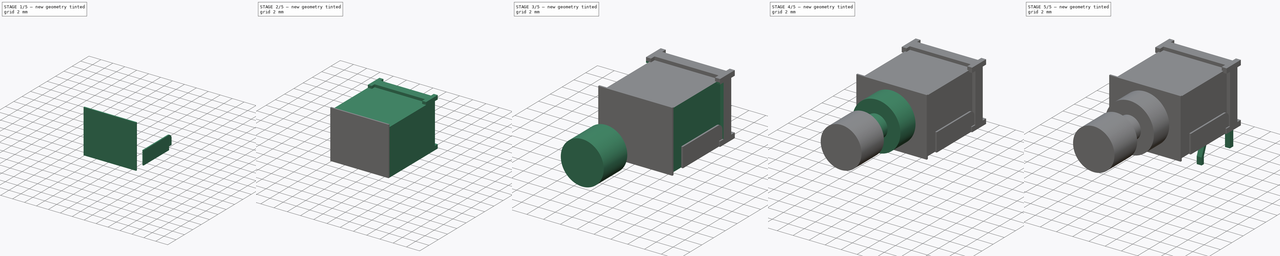
[diagram: build sequence overview — one tinted view per stage of 5, left to right]
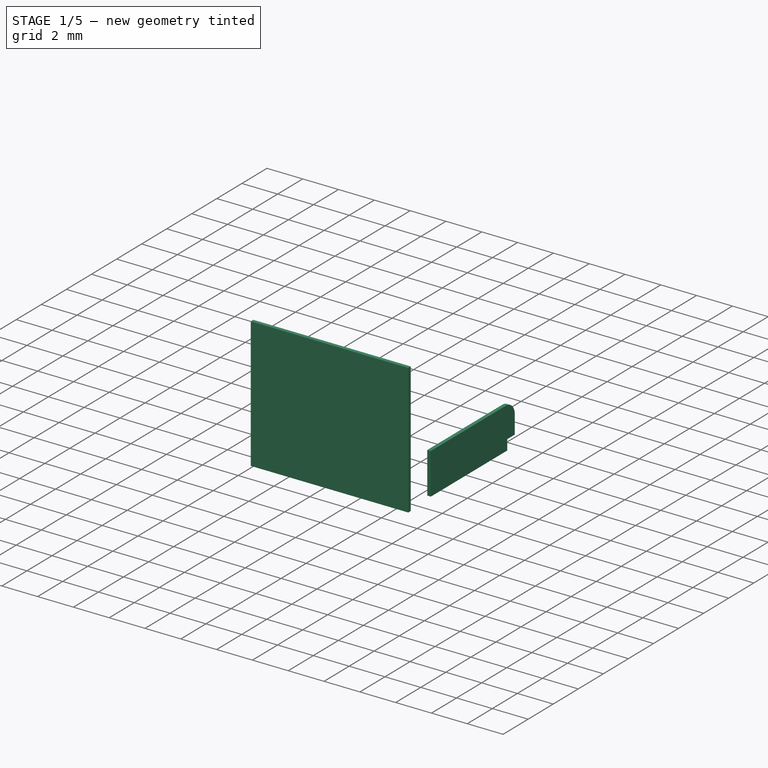
[diagram: stage 1 of 5 — iso view after this stage's code; geometry added in this stage tinted green]
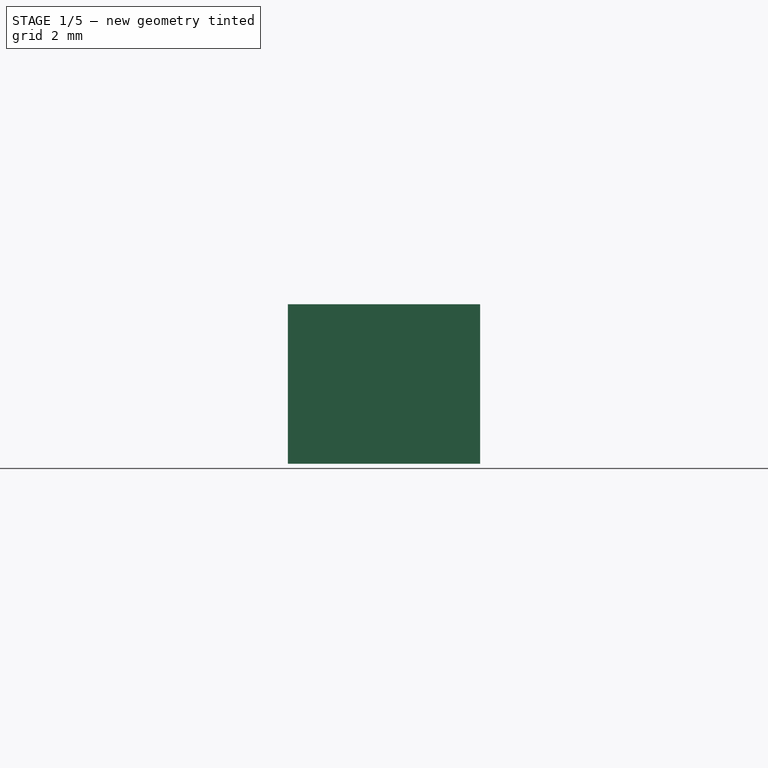
[diagram: stage 1 of 5 — front view after this stage's code; geometry added in this stage tinted green]
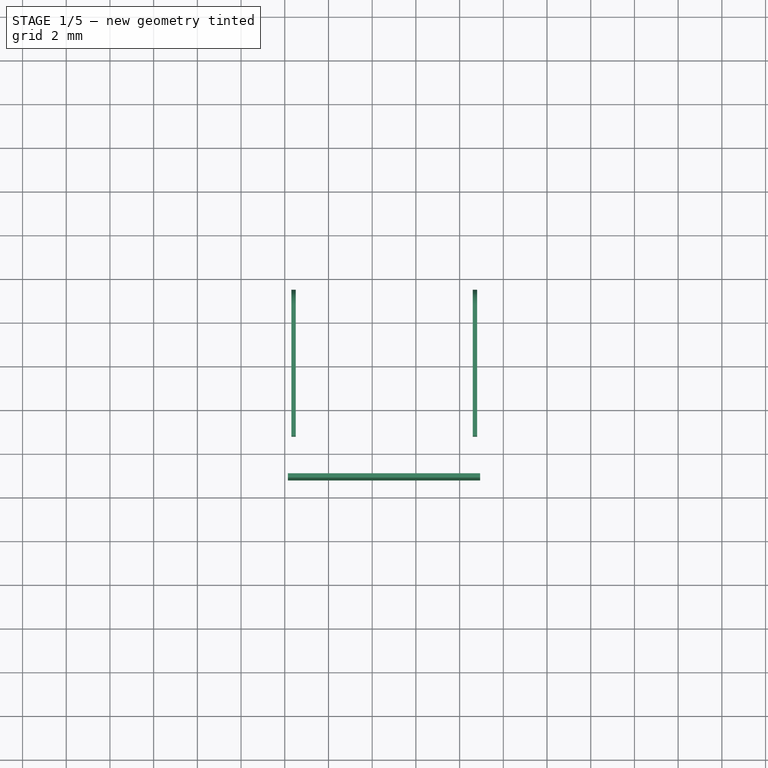
[diagram: stage 1 of 5 — top view after this stage's code; geometry added in this stage tinted green]
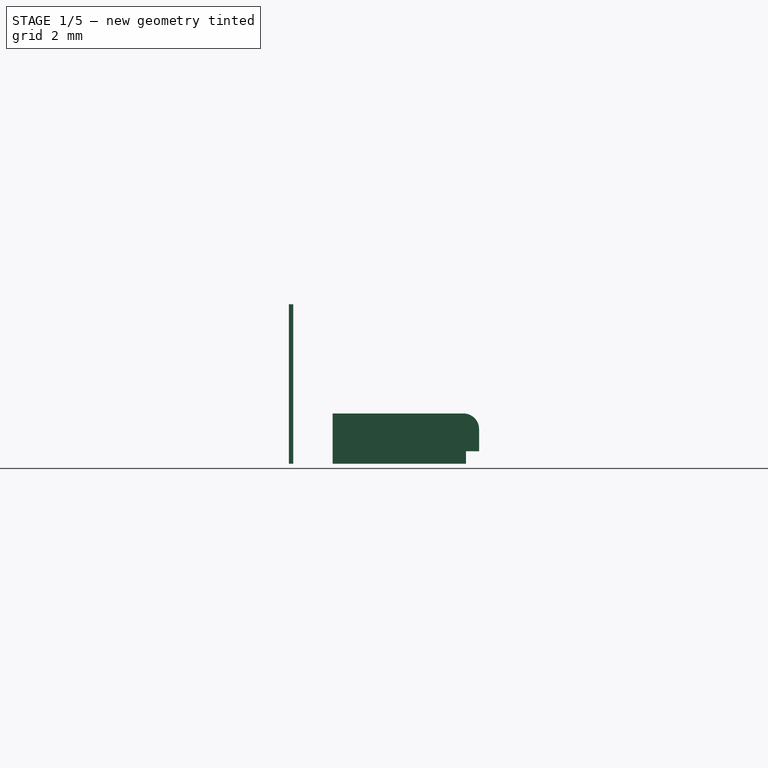
[diagram: stage 1 of 5 — right view after this stage's code; geometry added in this stage tinted green]
FCSTD DOCUMENT  (FreeCAD 0.15R4671 (Git))
Label: SW_NKK_BB15AH
License: All rights reserved
LicenseURL: http://en.wikipedia.org/wiki/All_rights_reserved
objects: Sketcher::SketchObject×13, PartDesign::Pad×10, PartDesign::Pocket×3, Part::FeaturePython×2
note: 41 computed .brp shape members not serialized (recipe doc carries the construction recipe); baked Part::Feature solids carry a one-line shape summary decoded from their .brp

FEATURE [Sketcher::SketchObject] Sketch010
  Placement = pos=(0,-11.2,0) rot=(1,0,0;1.5708rad)
  sketch-geometry (4):
    g0: LineSegment StartX=-1.86 StartY=7.3 StartZ=0 EndX=6.94 EndY=7.3 EndZ=0
    g1: LineSegment StartX=6.94 StartY=7.3 StartZ=0 EndX=6.94 EndY=0 EndZ=0
    g2: LineSegment StartX=6.94 StartY=0 StartZ=0 EndX=-1.86 EndY=0 EndZ=0
    g3: LineSegment StartX=-1.86 StartY=0 StartZ=0 EndX=-1.86 EndY=7.3 EndZ=0
  constraints (12):
    c: Coincident(g0,g1)
    c: Coincident(g1,g2)
    c: Coincident(g2,g3)
    c: Coincident(g3,g0)
    c: Horizontal(g0)
    c: Horizontal(g2)
    c: Vertical(g1)
    c: Vertical(g3)
    c: Distance(g0) = 8.8
    c: Distance(g1) = 7.3
    c: PointOnObject(g2,g-1)
    c: DistanceX(g-2,g0) = -1.86
FEATURE [PartDesign::Pad] Pad007
  Length = 0.2
  Length2 = 100
  Placement = pos=(0,-11.2,0) rot=(1,0,0;1.5708rad)
  Reversed = true
  Sketch = -> Sketch010
  Type = 0
FEATURE [Sketcher::SketchObject] Sketch011
  Placement = pos=(6.6,0,0) rot=(0.57735,0.57735,0.57735;2.0944rad)
  sketch-geometry (7):
    g0: LineSegment StartX=-9.2 StartY=0 StartZ=0 EndX=-9.2 EndY=2.3 EndZ=0
    g1: LineSegment StartX=-9.2 StartY=2.3 StartZ=0 EndX=-3.20905 EndY=2.3 EndZ=0
    g2: LineSegment StartX=-2.5 StartY=1.59095 StartZ=0 EndX=-2.5 EndY=0.570675 EndZ=0
    g3: LineSegment StartX=-2.5 StartY=0.570675 StartZ=0 EndX=-3.1 EndY=0.570675 EndZ=0
    g4: LineSegment StartX=-3.1 StartY=0.570675 StartZ=0 EndX=-3.1 EndY=0 EndZ=0
    g5: LineSegment StartX=-3.1 StartY=0 StartZ=0 EndX=-9.2 EndY=0 EndZ=0
    g6: ArcOfCircle CenterX=-3.20905 CenterY=1.59095 CenterZ=0 NormalX=0 NormalY=0 NormalZ=1 Radius=0.709045 StartAngle=0 EndAngle=1.5708
  constraints (17):
    c: PointOnObject(g0,g-1)
    c: Vertical(g0)
    c: Coincident(g0,g1)
    c: Horizontal(g1)
    c: Vertical(g2)
    c: Coincident(g2,g3)
    c: Coincident(g3,g4)
    c: PointOnObject(g4,g-1)
    c: Vertical(g4)
    c: Coincident(g4,g5)
    c: Coincident(g5,g0)
    c: Perpendicular(g4,g3)
    c: Distance(g3) = 0.6
    c: Distance(g0) = 2.3
    c: DistanceX(g-2,g0) = -9.2
    c: Tangent(g1,g6) = 1.5708
    c: Tangent(g2,g6) = 1.5708
FEATURE [PartDesign::Pad] Pad008
  Length = 0.2
  Length2 = 100
  Placement = pos=(6.6,0,0) rot=(0.57735,0.57735,0.57735;2.0944rad)
  Sketch = -> Sketch011
  Type = 0
FEATURE [Sketcher::SketchObject] Sketch012
  Placement = pos=(-1.5,0,0) rot=(0.57735,0.57735,0.57735;2.0944rad)
  sketch-geometry (7):
    g0: LineSegment StartX=-9.2 StartY=0 StartZ=0 EndX=-9.2 EndY=2.3 EndZ=0
    g1: LineSegment StartX=-9.2 StartY=2.3 StartZ=0 EndX=-3.20905 EndY=2.3 EndZ=0
    g2: LineSegment StartX=-2.5 StartY=1.59095 StartZ=0 EndX=-2.5 EndY=0.570675 EndZ=0
    g3: LineSegment StartX=-2.5 StartY=0.570675 StartZ=0 EndX=-3.1 EndY=0.570675 EndZ=0
    g4: LineSegment StartX=-3.1 StartY=0.570675 StartZ=0 EndX=-3.1 EndY=0 EndZ=0
    g5: LineSegment StartX=-3.1 StartY=0 StartZ=0 EndX=-9.2 EndY=0 EndZ=0
    g6: ArcOfCircle CenterX=-3.20905 CenterY=1.59095 CenterZ=0 NormalX=0 NormalY=0 NormalZ=1 Radius=0.709045 StartAngle=0 EndAngle=1.5708
  constraints (17):
    c: PointOnObject(g0,g-1)
    c: Vertical(g0)
    c: Coincident(g0,g1)
    c: Horizontal(g1)
    c: Vertical(g2)
    c: Coincident(g2,g3)
    c: Coincident(g3,g4)
    c: PointOnObject(g4,g-1)
    c: Vertical(g4)
    c: Coincident(g4,g5)
    c: Coincident(g5,g0)
    c: Perpendicular(g4,g3)
    c: Distance(g3) = 0.6
    c: Distance(g0) = 2.3
    c: DistanceX(g-2,g0) = -9.2
    c: Tangent(g1,g6) = 1.5708
    c: Tangent(g2,g6) = 1.5708
FEATURE [PartDesign::Pad] Pad009
  Length = 0.2
  Length2 = 100
  Placement = pos=(-1.5,0,0) rot=(0.57735,0.57735,0.57735;2.0944rad)
  Reversed = true
  Sketch = -> Sketch012
  Type = 0
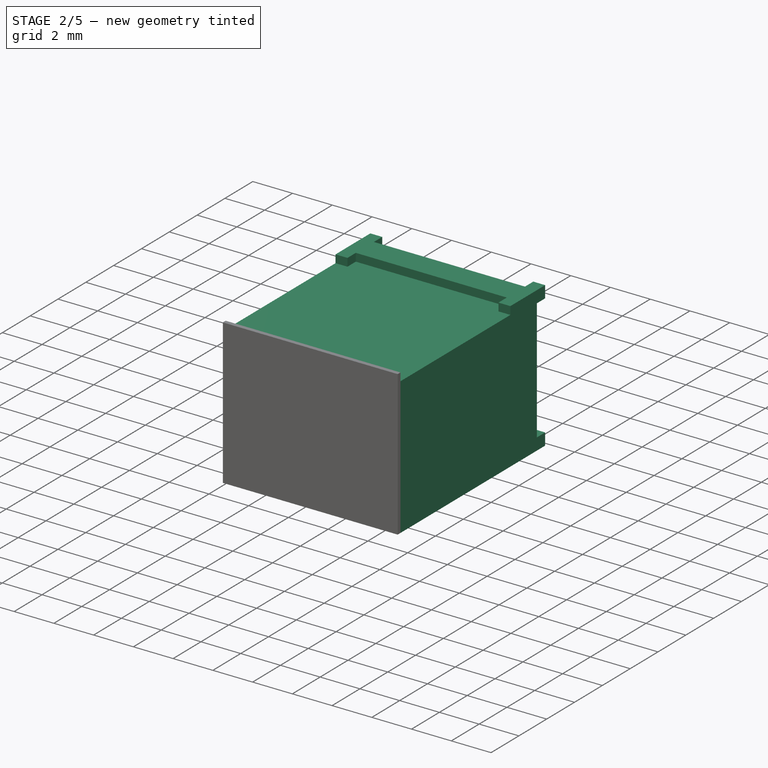
[diagram: stage 2 of 5 — iso view after this stage's code; geometry added in this stage tinted green]
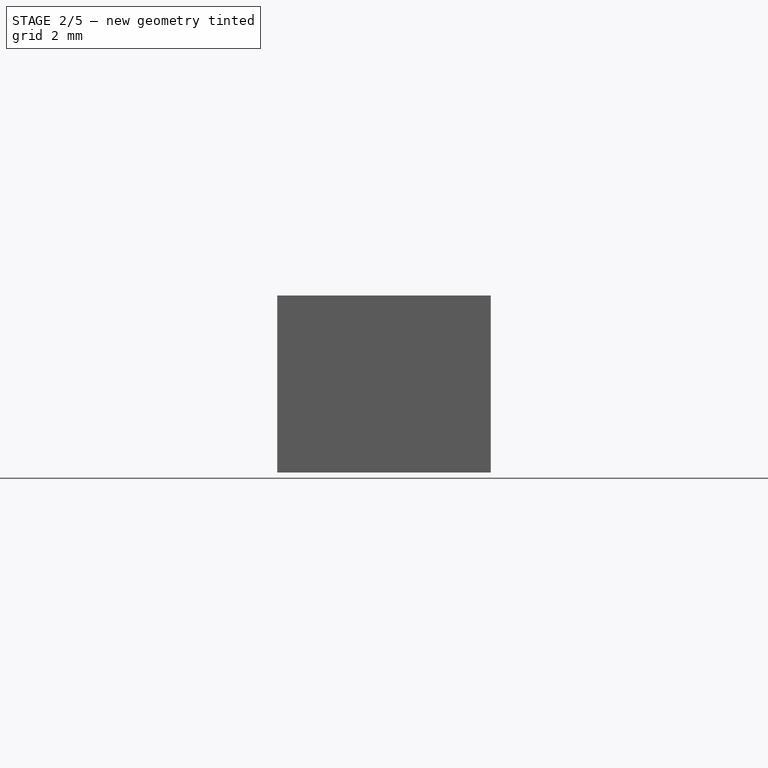
[diagram: stage 2 of 5 — front view after this stage's code; geometry added in this stage tinted green]
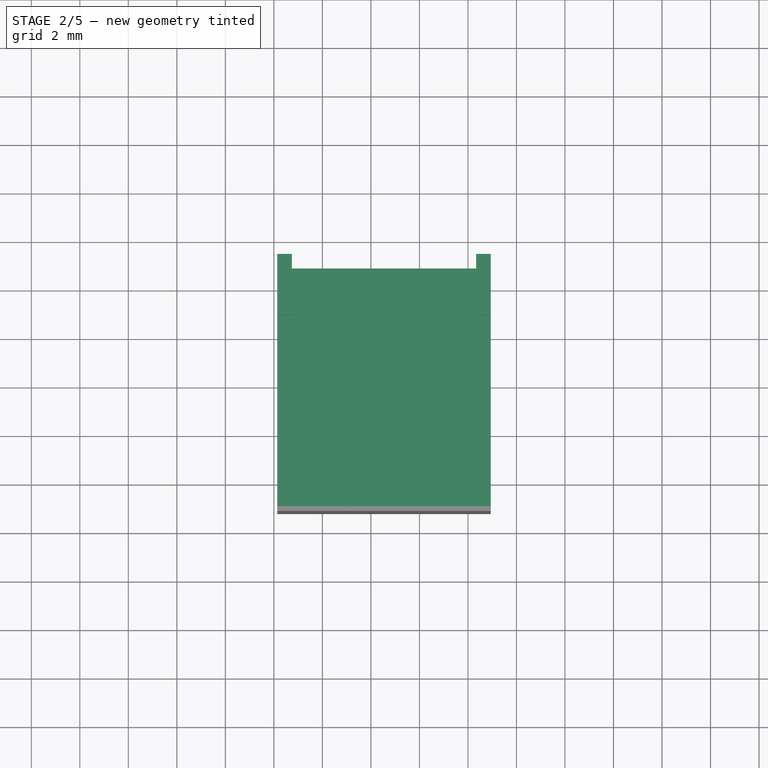
[diagram: stage 2 of 5 — top view after this stage's code; geometry added in this stage tinted green]
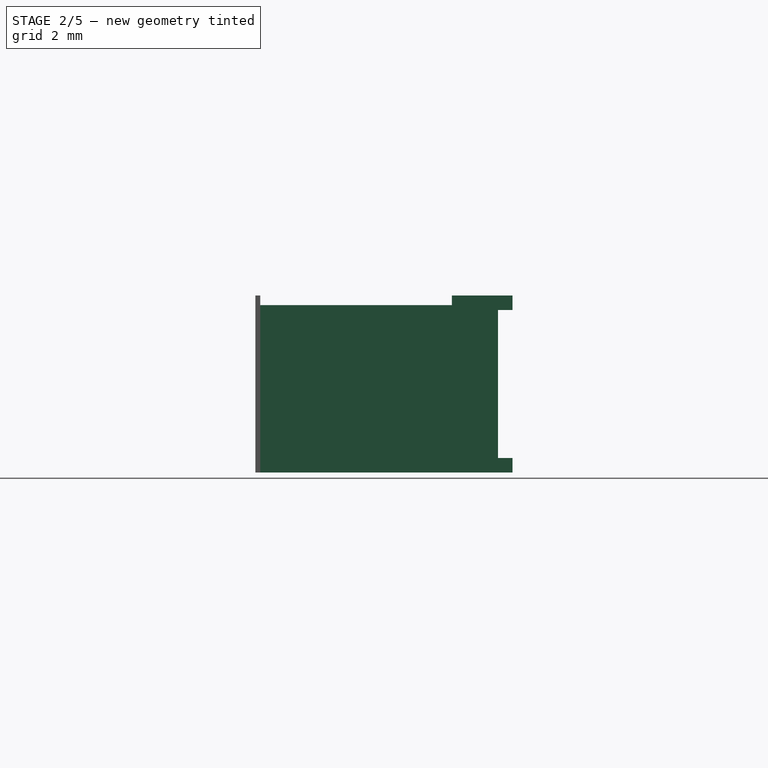
[diagram: stage 2 of 5 — right view after this stage's code; geometry added in this stage tinted green]
FEATURE [Sketcher::SketchObject] Sketch002
  Placement = pos=(0,-1.2,0) rot=(1,0,0;1.5708rad)
  sketch-geometry (4):
    g0: LineSegment StartX=-1.86 StartY=7.3 StartZ=0 EndX=6.94 EndY=7.3 EndZ=0
    g1: LineSegment StartX=6.94 StartY=7.3 StartZ=0 EndX=6.94 EndY=0 EndZ=0
    g2: LineSegment StartX=6.94 StartY=0 StartZ=0 EndX=-1.86 EndY=0 EndZ=0
    g3: LineSegment StartX=-1.86 StartY=0 StartZ=0 EndX=-1.86 EndY=7.3 EndZ=0
  constraints (12):
    c: Coincident(g0,g1)
    c: Coincident(g1,g2)
    c: Coincident(g2,g3)
    c: Coincident(g3,g0)
    c: Horizontal(g0)
    c: Horizontal(g2)
    c: Vertical(g1)
    c: Vertical(g3)
    c: Distance(g0) = 8.8
    c: Distance(g1) = 7.3
    c: PointOnObject(g2,g-1)
    c: DistanceX(g-2,g0) = -1.86
FEATURE [PartDesign::Pad] Pad002  label="Body"
  Length = 9.8
  Length2 = 100
  Placement = pos=(0,-1.2,0) rot=(1,0,0;1.5708rad)
  Sketch = -> Sketch002
  Type = 0
FEATURE [Sketcher::SketchObject] Sketch006
  Placement = pos=(0,-1.2,7.3) rot=(0,0,1;3.14159rad)
  Support = -> Pad002 [Face1]
  sketch-geometry (8):
    g0: LineSegment StartX=1.26 StartY=1.3 StartZ=0 EndX=1.26 EndY=1.9 EndZ=0
    g1: LineSegment StartX=1.26 StartY=1.9 StartZ=0 EndX=1.86 EndY=1.9 EndZ=0
    g2: LineSegment StartX=1.86 StartY=1.9 StartZ=0 EndX=1.86 EndY=10 EndZ=0
    g3: LineSegment StartX=1.86 StartY=10 StartZ=0 EndX=-6.94 EndY=10 EndZ=0
    g4: LineSegment StartX=-6.94 StartY=10 StartZ=0 EndX=-6.94 EndY=1.9 EndZ=0
    g5: LineSegment StartX=-6.94 StartY=1.9 StartZ=0 EndX=-6.34 EndY=1.9 EndZ=0
    g6: LineSegment StartX=-6.34 StartY=1.9 StartZ=0 EndX=-6.34 EndY=1.3 EndZ=0
    g7: LineSegment StartX=-6.34 StartY=1.3 StartZ=0 EndX=1.26 EndY=1.3 EndZ=0
  constraints (24):
    c: Vertical(g0)
    c: Coincident(g0,g1)
    c: Horizontal(g1)
    c: Coincident(g1,g2)
    c: Vertical(g2)
    c: Coincident(g2,g3)
    c: Horizontal(g3)
    c: Coincident(g3,g4)
    c: Vertical(g4)
    c: Coincident(g4,g5)
    c: Horizontal(g5)
    c: Coincident(g5,g6)
    c: Vertical(g6)
    c: Coincident(g6,g7)
    c: Coincident(g7,g0)
    c: Horizontal(g7)
    c: Distance(g3) = 8.8
    c: Distance(g6,g3) = 8.7
    c: DistanceY(g-1,g2) = 10
    c: Equal(g5,g6)
    c: Equal(g6,g0)
    c: Equal(g0,g1)
    c: Distance(g1) = 0.6
    c: DistanceX(g-2,g1) = 1.86
FEATURE [PartDesign::Pocket] Pocket
  Length = 0.4
  Placement = pos=(0,-1.2,0) rot=(1,0,0;1.5708rad)
  Sketch = -> Sketch006
  Type = 0
FEATURE [Sketcher::SketchObject] Sketch009
  Placement = pos=(0,-0.6,0) rot=(1,0,0;1.5708rad)
  sketch-geometry (16):
    g0: LineSegment StartX=-1.86 StartY=7.3 StartZ=0 EndX=-1.26 EndY=7.3 EndZ=0
    g1: LineSegment StartX=-1.26 StartY=7.3 StartZ=0 EndX=-1.26 EndY=6.7 EndZ=0
    g2: LineSegment StartX=-1.26 StartY=6.7 StartZ=0 EndX=-1.86 EndY=6.7 EndZ=0
    g3: LineSegment StartX=-1.86 StartY=6.7 StartZ=0 EndX=-1.86 EndY=7.3 EndZ=0
    g4: LineSegment StartX=-1.86 StartY=0 StartZ=0 EndX=-1.26 EndY=0 EndZ=0
    g5: LineSegment StartX=-1.26 StartY=0 StartZ=0 EndX=-1.26 EndY=0.6 EndZ=0
    g6: LineSegment StartX=-1.26 StartY=0.6 StartZ=0 EndX=-1.86 EndY=0.6 EndZ=0
    g7: LineSegment StartX=-1.86 StartY=0.6 StartZ=0 EndX=-1.86 EndY=0 EndZ=0
    g8: LineSegment StartX=6.34 StartY=7.3 StartZ=0 EndX=6.94 EndY=7.3 EndZ=0
    g9: LineSegment StartX=6.94 StartY=7.3 StartZ=0 EndX=6.94 EndY=6.7 EndZ=0
    g10: LineSegment StartX=6.94 StartY=6.7 StartZ=0 EndX=6.34 EndY=6.7 EndZ=0
    g11: LineSegment StartX=6.34 StartY=6.7 StartZ=0 EndX=6.34 EndY=7.3 EndZ=0
    g12: LineSegment StartX=6.34 StartY=0 StartZ=0 EndX=6.94 EndY=0 EndZ=0
    g13: LineSegment StartX=6.94 StartY=0 StartZ=0 EndX=6.94 EndY=0.6 EndZ=0
    g14: LineSegment StartX=6.94 StartY=0.6 StartZ=0 EndX=6.34 EndY=0.6 EndZ=0
    g15: LineSegment StartX=6.34 StartY=0.6 StartZ=0 EndX=6.34 EndY=0 EndZ=0
  constraints (48):
    c: Coincident(g0,g1)
    c: Coincident(g1,g2)
    c: Coincident(g2,g3)
    c: Coincident(g3,g0)
    c: Horizontal(g0)
    c: Horizontal(g2)
    c: Vertical(g1)
    c: Vertical(g3)
    c: Coincident(g4,g5)
    c: Coincident(g5,g6)
    c: Coincident(g6,g7)
    c: Coincident(g7,g4)
    c: Horizontal(g4)
    c: Horizontal(g6)
    c: Vertical(g5)
    c: Vertical(g7)
    c: PointOnObject(g4,g-1)
    c: Coincident(g8,g9)
    c: Coincident(g9,g10)
    c: Coincident(g10,g11)
    c: Coincident(g11,g8)
    c: Horizontal(g8)
    c: Horizontal(g10)
    c: Vertical(g9)
    c: Vertical(g11)
    c: Coincident(g12,g13)
    c: Coincident(g13,g14)
    c: Coincident(g14,g15)
    c: Coincident(g15,g12)
    c: Horizontal(g12)
    c: Horizontal(g14)
    c: Vertical(g13)
    c: Vertical(g15)
    c: PointOnObject(g12,g-1)
    c: Equal(g6,g5)
    c: Equal(g5,g2)
    c: Equal(g2,g3)
    c: Equal(g3,g11)
    c: Equal(g11,g10)
    c: Equal(g10,g14)
    c: Equal(g14,g15)
    c: Distance(g0) = 0.6
    c: DistanceX(g-2,g4) = -1.86
    c: DistanceX(g-2,g0) = -1.86
    c: DistanceY(g-1,g0) = 7.3
    c: DistanceY(g-1,g8) = 7.3
    c: DistanceX(g-2,g8) = 6.94
    c: DistanceX(g-2,g13) = 6.94
FEATURE [PartDesign::Pad] Pad006
  Length = 0.6
  Length2 = 100
  Placement = pos=(0,-0.6,0) rot=(1,0,0;1.5708rad)
  Sketch = -> Sketch009
  Type = 0
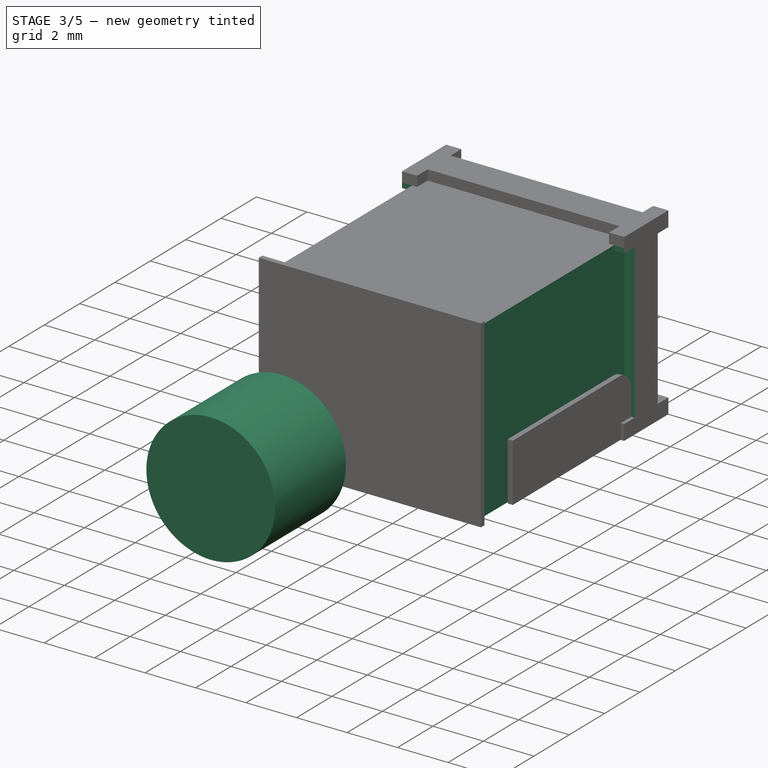
[diagram: stage 3 of 5 — iso view after this stage's code; geometry added in this stage tinted green]
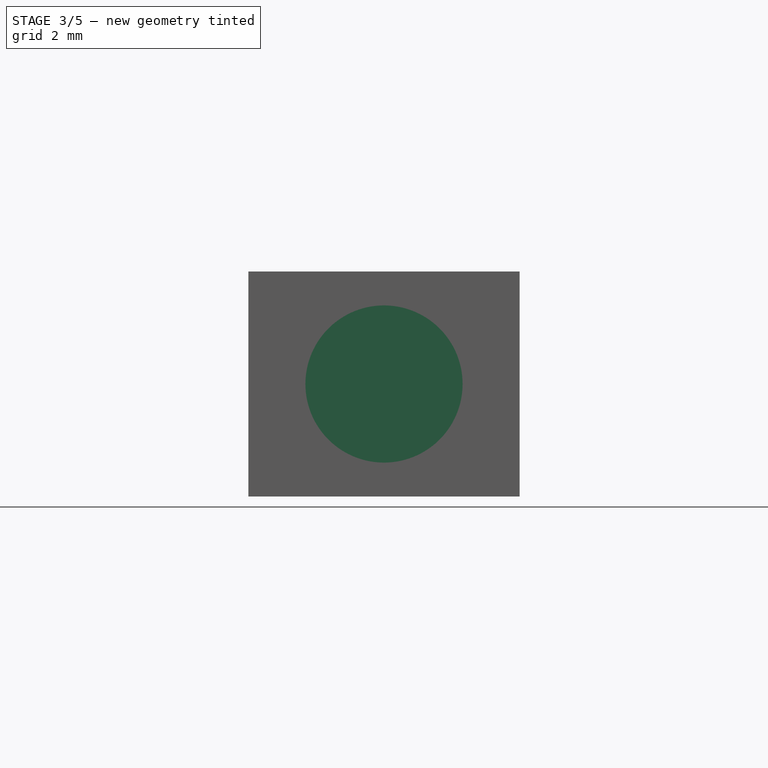
[diagram: stage 3 of 5 — front view after this stage's code; geometry added in this stage tinted green]
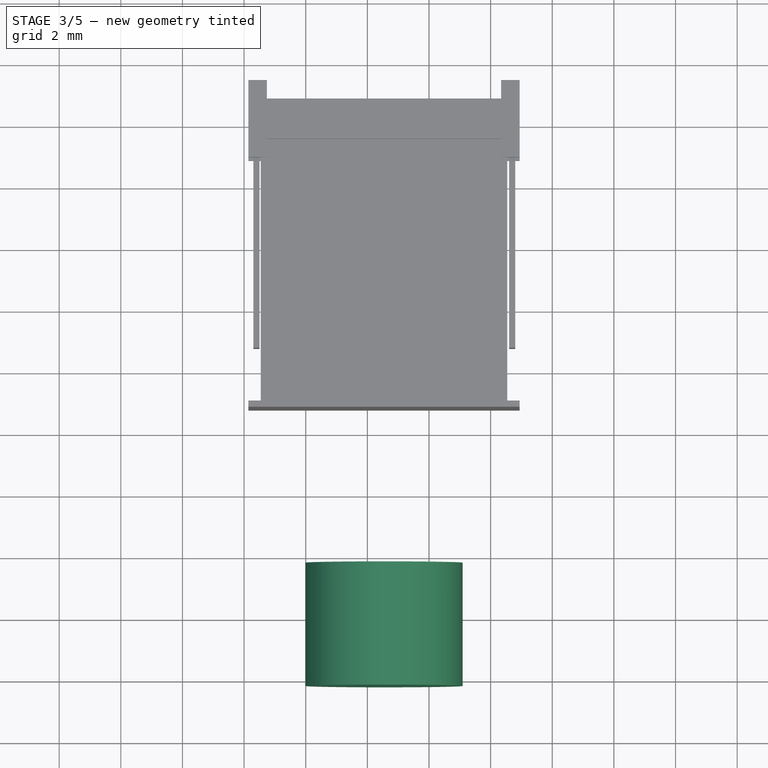
[diagram: stage 3 of 5 — top view after this stage's code; geometry added in this stage tinted green]
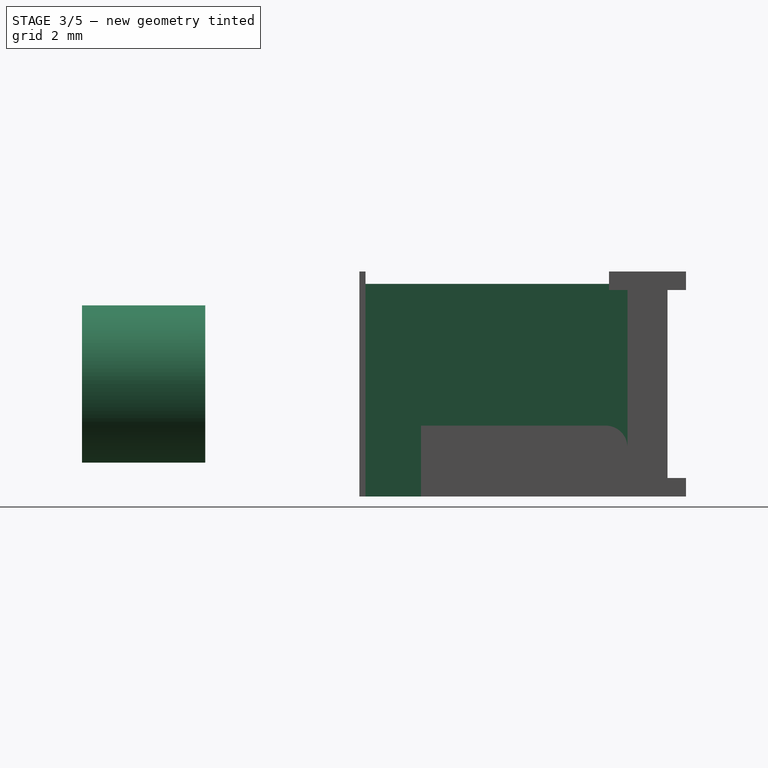
[diagram: stage 3 of 5 — right view after this stage's code; geometry added in this stage tinted green]
FEATURE [Sketcher::SketchObject] Sketch005
  Placement = pos=(0,-20.2,0) rot=(1,0,0;1.5708rad)
  sketch-geometry (1):
    g0: Circle CenterX=2.54 CenterY=3.65 CenterZ=0 NormalX=0 NormalY=0 NormalZ=1 Radius=2.55
  constraints (3):
    c: DistanceX(g-2,g0) = 2.54
    c: DistanceY(g-1,g0) = 3.65
    c: Radius(g0) = 2.55
FEATURE [PartDesign::Pad] Pad005  label="Cap"
  Length = 4
  Length2 = 100
  Placement = pos=(0,-20.2,0) rot=(1,0,0;1.5708rad)
  Reversed = true
  Sketch = -> Sketch005
  Type = 0
FEATURE [Sketcher::SketchObject] Sketch007
  Placement = pos=(6.94,-1.2,0) rot=(0.707107,0,0.707107;3.14159rad)
  Support = -> Pocket [Face3]
  sketch-geometry (8):
    g0: LineSegment StartX=0 StartY=1.9 StartZ=0 EndX=0.6 EndY=1.9 EndZ=0
    g1: LineSegment StartX=0.6 StartY=1.9 StartZ=0 EndX=0.6 EndY=1.3 EndZ=0
    g2: LineSegment StartX=0.6 StartY=1.3 StartZ=0 EndX=6.7 EndY=1.3 EndZ=0
    g3: LineSegment StartX=6.7 StartY=1.3 StartZ=0 EndX=6.7 EndY=1.9 EndZ=0
    g4: LineSegment StartX=6.7 StartY=1.9 StartZ=0 EndX=7.3 EndY=1.9 EndZ=0
    g5: LineSegment StartX=7.3 StartY=1.9 StartZ=0 EndX=7.3 EndY=10 EndZ=0
    g6: LineSegment StartX=7.3 StartY=10 StartZ=0 EndX=0 EndY=10 EndZ=0
    g7: LineSegment StartX=0 StartY=10 StartZ=0 EndX=0 EndY=1.9 EndZ=0
  constraints (25):
    c: PointOnObject(g0,g-2)
    c: Horizontal(g0)
    c: Coincident(g0,g1)
    c: Vertical(g1)
    c: Coincident(g1,g2)
    c: Horizontal(g2)
    c: Coincident(g2,g3)
    c: Vertical(g3)
    c: Coincident(g3,g4)
    c: Horizontal(g4)
    c: Coincident(g4,g5)
    c: Vertical(g5)
    c: Coincident(g5,g6)
    c: Horizontal(g6)
    c: Coincident(g6,g7)
    c: Vertical(g7)
    c: Equal(g4,g3)
    c: Equal(g3,g1)
    c: Equal(g1,g0)
    c: Distance(g4) = 0.6
    c: DistanceY(g-1,g5) = 10
    c: PointOnObject(g6,g-2)
    c: Distance(g6) = 7.3
    c: Equal(g5,g7)
    c: Distance(g5) = 8.1
FEATURE [PartDesign::Pocket] Pocket001
  Length = 0.4
  Placement = pos=(0,-1.2,0) rot=(1,0,0;1.5708rad)
  Sketch = -> Sketch007
  Type = 0
FEATURE [Sketcher::SketchObject] Sketch008
  Placement = pos=(-1.86,-1.2,0) rot=(0.707107,0,-0.707107;3.14159rad)
  Support = -> Pocket001 [Face3]
  sketch-geometry (8):
    g0: LineSegment StartX=-0.6 StartY=1.3 StartZ=0 EndX=-0.6 EndY=1.9 EndZ=0
    g1: LineSegment StartX=-0.6 StartY=1.9 StartZ=0 EndX=0 EndY=1.9 EndZ=0
    g2: LineSegment StartX=0 StartY=1.9 StartZ=0 EndX=0 EndY=10 EndZ=0
    g3: LineSegment StartX=0 StartY=10 StartZ=0 EndX=-7.3 EndY=10 EndZ=0
    g4: LineSegment StartX=-7.3 StartY=10 StartZ=0 EndX=-7.3 EndY=1.9 EndZ=0
    g5: LineSegment StartX=-7.3 StartY=1.9 StartZ=0 EndX=-6.7 EndY=1.9 EndZ=0
    g6: LineSegment StartX=-6.7 StartY=1.9 StartZ=0 EndX=-6.7 EndY=1.3 EndZ=0
    g7: LineSegment StartX=-6.7 StartY=1.3 StartZ=0 EndX=-0.6 EndY=1.3 EndZ=0
  constraints (24):
    c: Vertical(g0)
    c: Coincident(g0,g1)
    c: PointOnObject(g1,g-2)
    c: Horizontal(g1)
    c: Coincident(g1,g2)
    c: Vertical(g2)
    c: Coincident(g2,g3)
    c: Horizontal(g3)
    c: Coincident(g3,g4)
    c: Vertical(g4)
    c: Coincident(g4,g5)
    c: Coincident(g5,g6)
    c: Vertical(g6)
    c: Coincident(g6,g7)
    c: Coincident(g7,g0)
    c: Horizontal(g7)
    c: Distance(g3) = 7.3
    c: Equal(g5,g6)
    c: Equal(g6,g1)
    c: Equal(g1,g0)
    c: Parallel(g5,g1)
    c: Distance(g5) = 0.6
    c: DistanceY(g-1,g3) = 10
    c: Distance(g2) = 8.1
FEATURE [PartDesign::Pocket] Pocket002
  Length = 0.4
  Placement = pos=(0,-1.2,0) rot=(1,0,0;1.5708rad)
  Sketch = -> Sketch008
  Type = 0
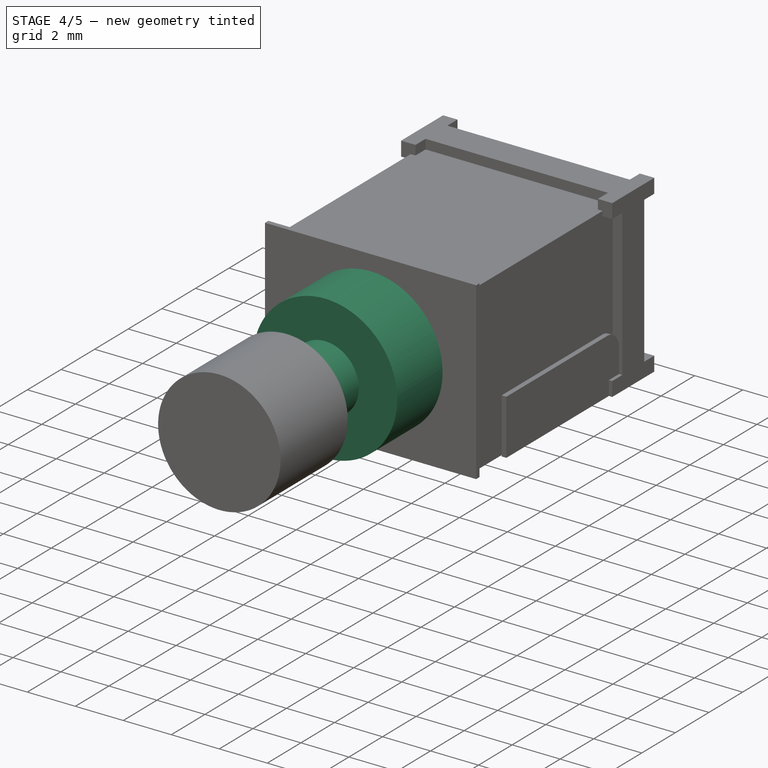
[diagram: stage 4 of 5 — iso view after this stage's code; geometry added in this stage tinted green]
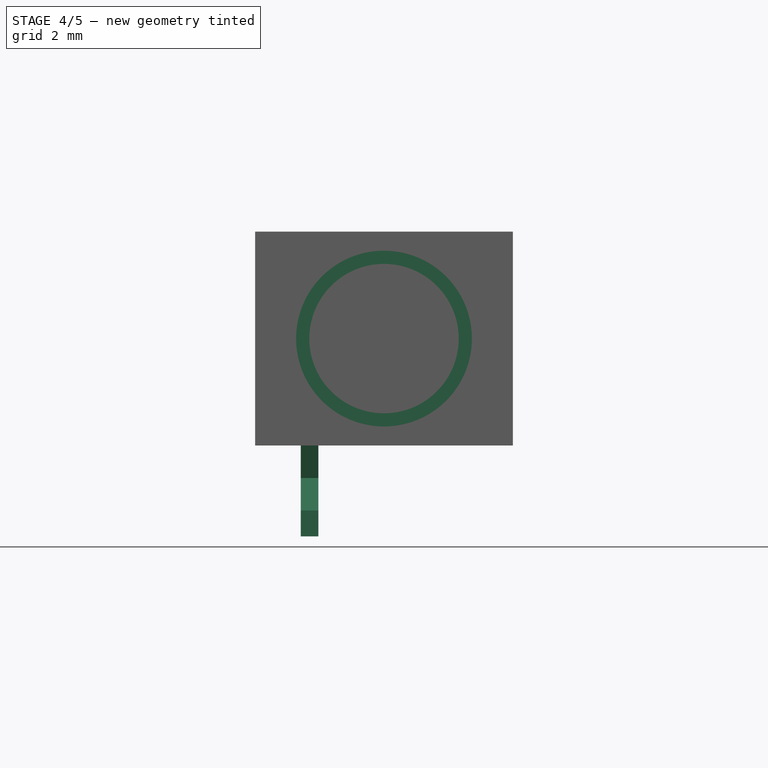
[diagram: stage 4 of 5 — front view after this stage's code; geometry added in this stage tinted green]
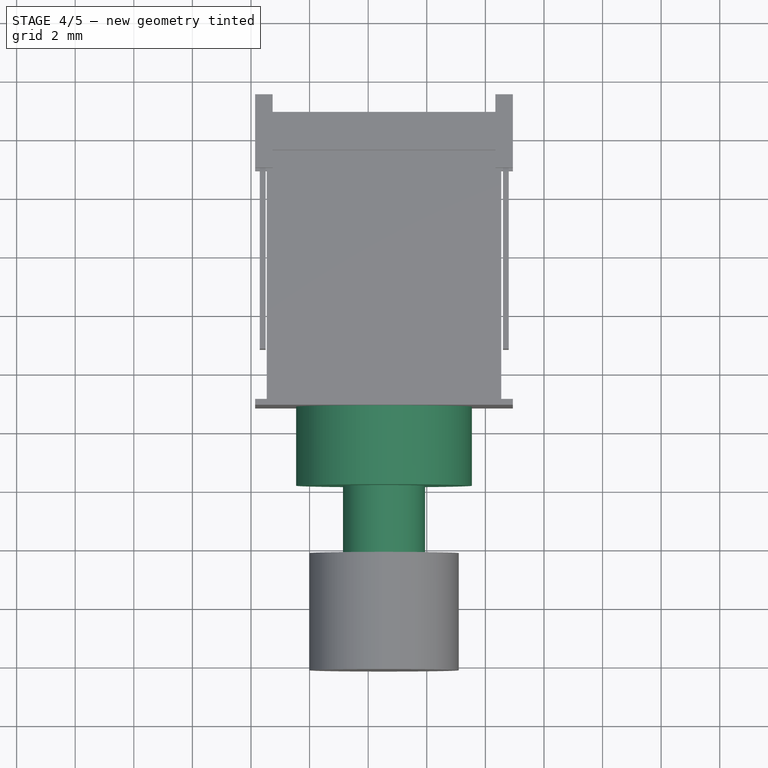
[diagram: stage 4 of 5 — top view after this stage's code; geometry added in this stage tinted green]
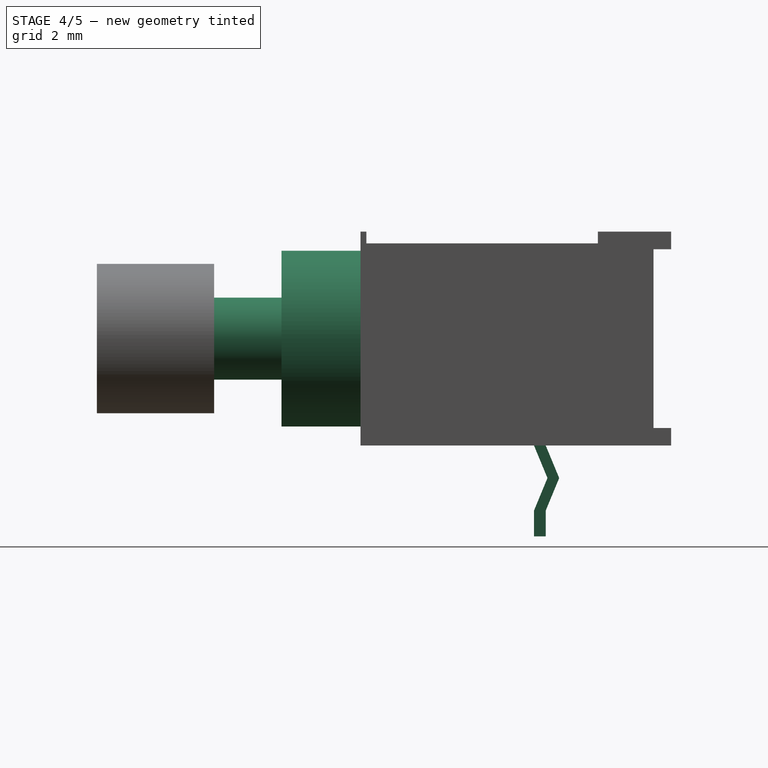
[diagram: stage 4 of 5 — right view after this stage's code; geometry added in this stage tinted green]
FEATURE [Sketcher::SketchObject] Sketch001
  Placement = pos=(0,0,0) rot=(0.57735,0.57735,0.57735;2.0944rad)
  sketch-geometry (8):
    g0: LineSegment StartX=-5.28 StartY=0 StartZ=0 EndX=-4.82029 EndY=-1.10984 EndZ=0
    g1: LineSegment StartX=-4.82029 StartY=-1.10984 StartZ=0 EndX=-5.28 EndY=-2.21968 EndZ=0
    g2: LineSegment StartX=-5.28 StartY=-2.21968 StartZ=0 EndX=-5.28 EndY=-3.1 EndZ=0
    g3: LineSegment StartX=-5.28 StartY=-3.1 StartZ=0 EndX=-4.88 EndY=-3.1 EndZ=0
    g4: LineSegment StartX=-4.88 StartY=-3.1 StartZ=0 EndX=-4.88 EndY=-2.21968 EndZ=0
    g5: LineSegment StartX=-4.88 StartY=-2.21968 StartZ=0 EndX=-4.42029 EndY=-1.10984 EndZ=0
    g6: LineSegment StartX=-4.42029 StartY=-1.10984 StartZ=0 EndX=-4.88 EndY=0 EndZ=0
    g7: LineSegment StartX=-4.88 StartY=0 StartZ=0 EndX=-5.28 EndY=0 EndZ=0
  constraints (23):
    c: PointOnObject(g0,g-1)
    c: Coincident(g0,g1)
    c: Coincident(g1,g2)
    c: Vertical(g2)
    c: Coincident(g2,g3)
    c: Coincident(g3,g4)
    c: Vertical(g4)
    c: Coincident(g4,g5)
    c: Coincident(g5,g6)
    c: PointOnObject(g6,g-1)
    c: Coincident(g6,g7)
    c: Coincident(g7,g0)
    c: Parallel(g3,g7)
    c: Parallel(g6,g0)
    c: Equal(g6,g0)
    c: Parallel(g5,g1)
    c: Equal(g5,g1)
    c: Distance(g3) = 0.4
    c: Equal(g6,g5)
    c: DistanceY(g-1,g2) = -3.1
    c: Angle(g0,g1) = 2.35619
    c: DistanceX(g-2,g0) = -5.28
    c: DistanceX(g-2,g2) = -5.28
FEATURE [PartDesign::Pad] Pad001
  Length = 0.6
  Length2 = 100
  Midplane = true
  Placement = pos=(0,0,0) rot=(0.57735,0.57735,0.57735;2.0944rad)
  Sketch = -> Sketch001
  Type = 0
FEATURE [Sketcher::SketchObject] Sketch003
  Placement = pos=(0,-11.2,0) rot=(1,0,0;1.5708rad)
  sketch-geometry (1):
    g0: Circle CenterX=2.54 CenterY=3.65 CenterZ=0 NormalX=0 NormalY=0 NormalZ=1 Radius=3
  constraints (3):
    c: Radius(g0) = 3
    c: DistanceX(g-2,g0) = 2.54
    c: DistanceY(g-1,g0) = 3.65
FEATURE [PartDesign::Pad] Pad003  label="BodyCircle"
  Length = 2.7
  Length2 = 100
  Placement = pos=(0,-11.2,0) rot=(1,0,0;1.5708rad)
  Sketch = -> Sketch003
  Type = 0
FEATURE [Sketcher::SketchObject] Sketch004
  Placement = pos=(0,-13.9,0) rot=(1,0,0;1.5708rad)
  sketch-geometry (1):
    g0: Circle CenterX=2.54 CenterY=3.65 CenterZ=0 NormalX=0 NormalY=0 NormalZ=1 Radius=1.4
  constraints (3):
    c: DistanceX(g-2,g0) = 2.54
    c: DistanceY(g-1,g0) = 3.65
    c: Radius(g0) = 1.4
FEATURE [PartDesign::Pad] Pad004  label="Button"
  Length = 5.4
  Length2 = 100
  Placement = pos=(0,-13.9,0) rot=(1,0,0;1.5708rad)
  Sketch = -> Sketch004
  Type = 0
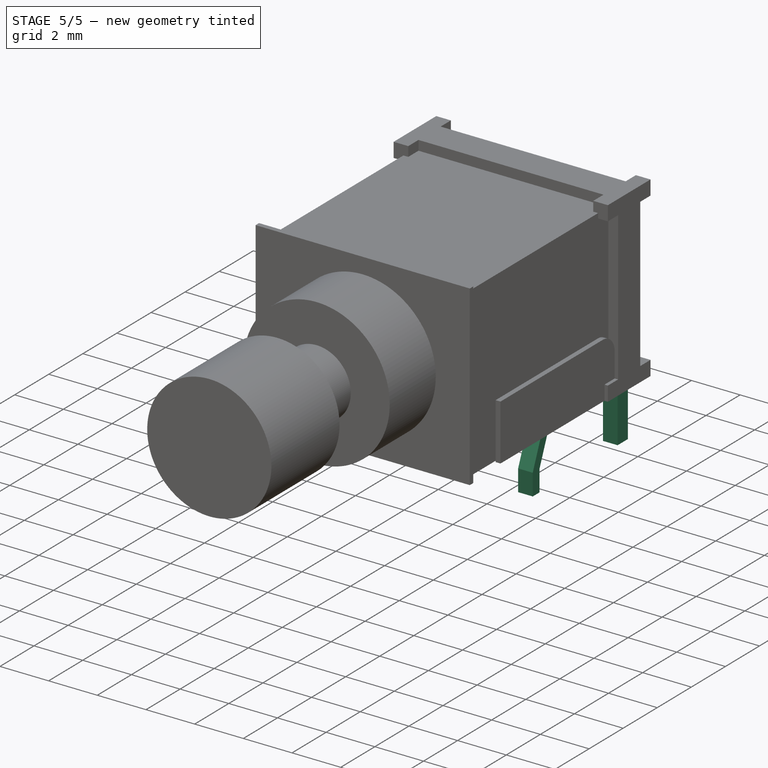
[diagram: stage 5 of 5 — iso view after this stage's code; geometry added in this stage tinted green]
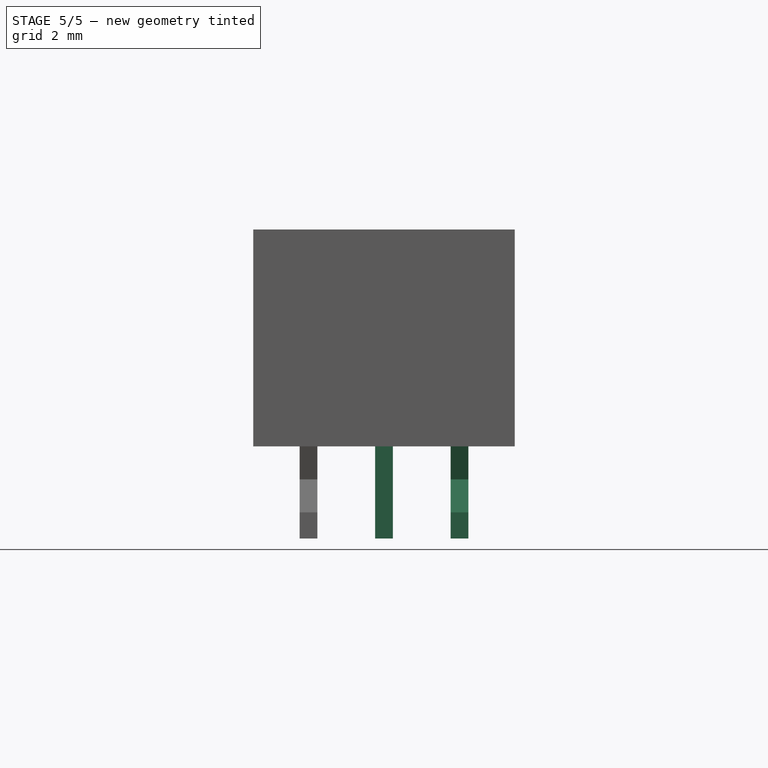
[diagram: stage 5 of 5 — front view after this stage's code; geometry added in this stage tinted green]
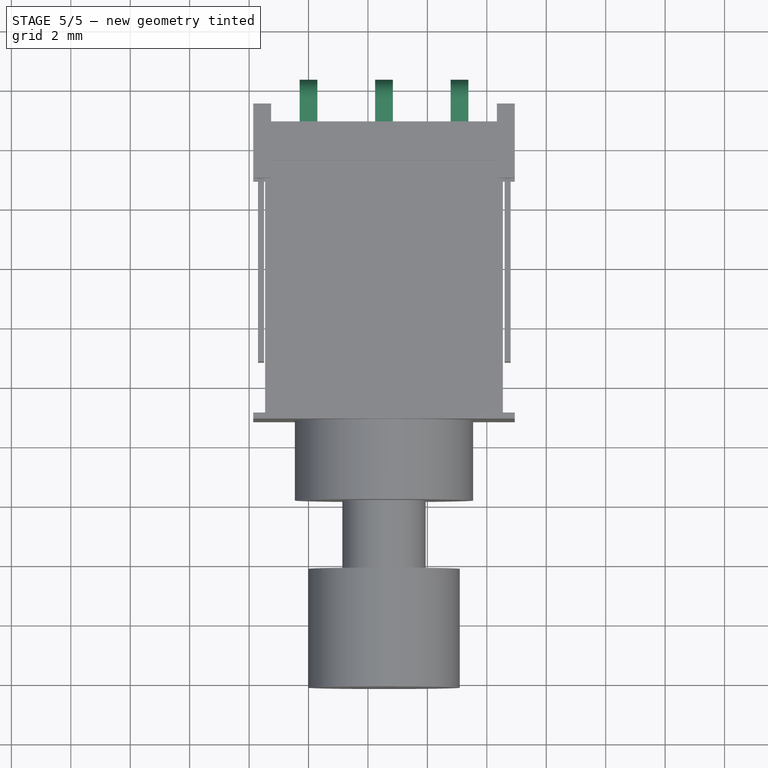
[diagram: stage 5 of 5 — top view after this stage's code; geometry added in this stage tinted green]
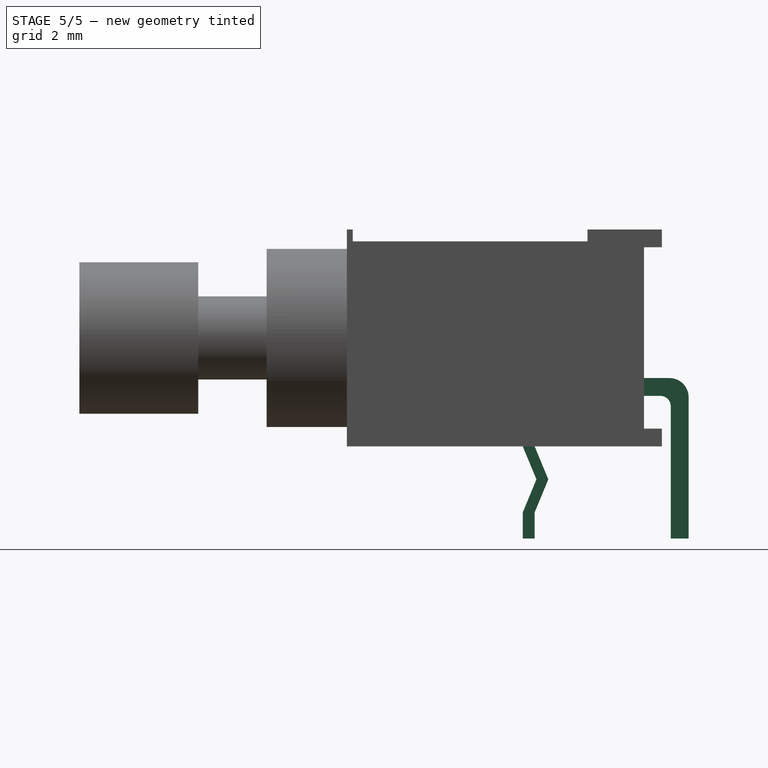
[diagram: stage 5 of 5 — right view after this stage's code; geometry added in this stage tinted green]
FEATURE [Sketcher::SketchObject] Sketch
  Placement = pos=(0,0,0) rot=(0.57735,0.57735,0.57735;2.0944rad)
  sketch-geometry (8):
    g0: LineSegment StartX=-0.3 StartY=-3.1 StartZ=0 EndX=-0.3 EndY=1.3521 EndZ=0
    g1: LineSegment StartX=-0.647902 StartY=1.7 StartZ=0 EndX=-2.14239 EndY=1.7 EndZ=0
    g2: LineSegment StartX=-2.14239 StartY=1.7 StartZ=0 EndX=-2.14239 EndY=2.3 EndZ=0
    g3: LineSegment StartX=-2.14239 StartY=2.3 StartZ=0 EndX=-0.341182 EndY=2.3 EndZ=0
    g4: LineSegment StartX=0.3 StartY=1.65882 StartZ=0 EndX=0.3 EndY=-3.1 EndZ=0
    g5: LineSegment StartX=0.3 StartY=-3.1 StartZ=0 EndX=-0.3 EndY=-3.1 EndZ=0
    g6: ArcOfCircle CenterX=-0.341182 CenterY=1.65882 CenterZ=0 NormalX=0 NormalY=0 NormalZ=1 Radius=0.641182 StartAngle=0 EndAngle=1.5708
    g7: ArcOfCircle CenterX=-0.647902 CenterY=1.3521 CenterZ=0 NormalX=0 NormalY=0 NormalZ=1 Radius=0.347902 StartAngle=0 EndAngle=1.5708
  constraints (19):
    c: Vertical(g0)
    c: Horizontal(g1)
    c: Coincident(g1,g2)
    c: Vertical(g2)
    c: Coincident(g2,g3)
    c: Horizontal(g3)
    c: Vertical(g4)
    c: Coincident(g4,g5)
    c: Coincident(g5,g0)
    c: Horizontal(g5)
    c: Tangent(g3,g6) = 1.5708
    c: Tangent(g4,g6) = 1.5708
    c: Tangent(g1,g7) = -1.5708
    c: Tangent(g0,g7) = -1.5708
    c: Equal(g2,g5)
    c: Distance(g5) = 0.6
    c: DistanceY(g-1,g0) = -3.1
    c: DistanceY(g-1,g1) = 1.7
    c: DistanceX(g-2,g0) = -0.3
FEATURE [PartDesign::Pad] Pad
  Length = 0.6
  Length2 = 100
  Midplane = true
  Placement = pos=(0,0,0) rot=(0.57735,0.57735,0.57735;2.0944rad)
  Sketch = -> Sketch
  Type = 0
FEATURE [Part::FeaturePython] Array  label="Array3"  # Draft array (typed FeaturePython)
  Angle = 360
  ArrayType = 0
  Axis = (0,0,1)
  Base = -> Pad
  Center = (0,0,0)
  Fuse = false
  IntervalAxis = (0,0,0)
  IntervalX = (2.54,0,0)
  IntervalY = (0,1,0)
  IntervalZ = (0,0,0)
  NumberPolar = 1
  NumberX = 3
  NumberY = 1
  NumberZ = 1
FEATURE [Part::FeaturePython] Array001  # Draft array (typed FeaturePython)
  Angle = 360
  ArrayType = 0
  Axis = (0,0,1)
  Base = -> Pad001
  Center = (0,0,0)
  Fuse = false
  IntervalAxis = (0,0,0)
  IntervalX = (5.08,0,0)
  IntervalY = (0,1,0)
  IntervalZ = (0,0,0)
  NumberPolar = 1
  NumberX = 2
  NumberY = 1
  NumberZ = 1
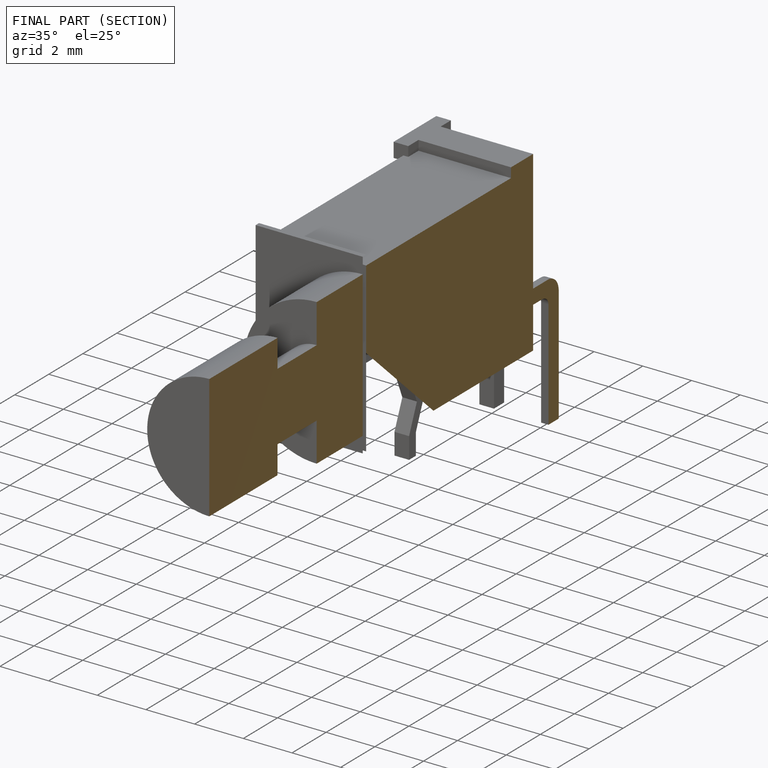
[diagram: finished part — half-section view (interior)]
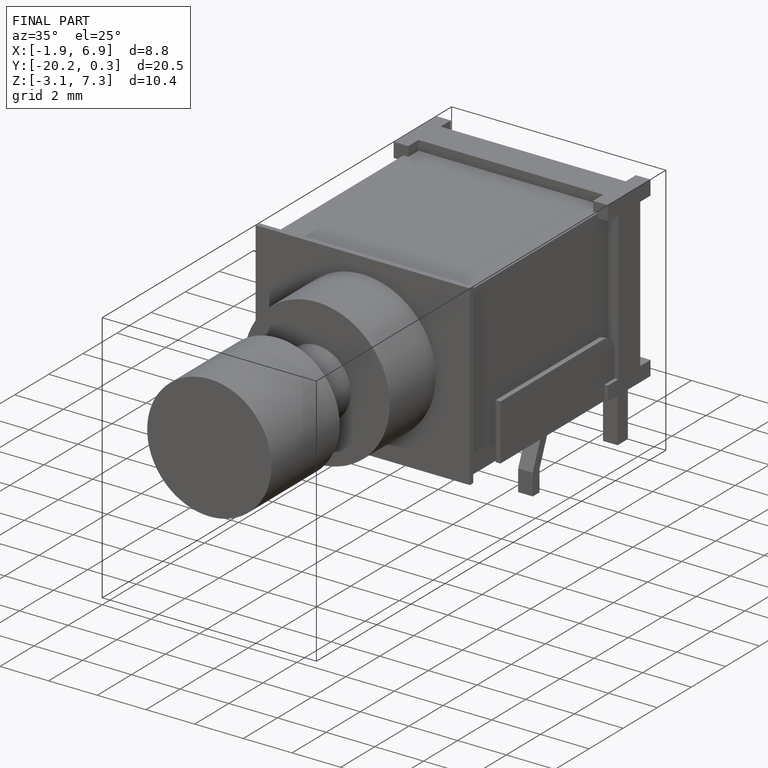
[diagram: finished part — iso view with bounding-box wireframe]
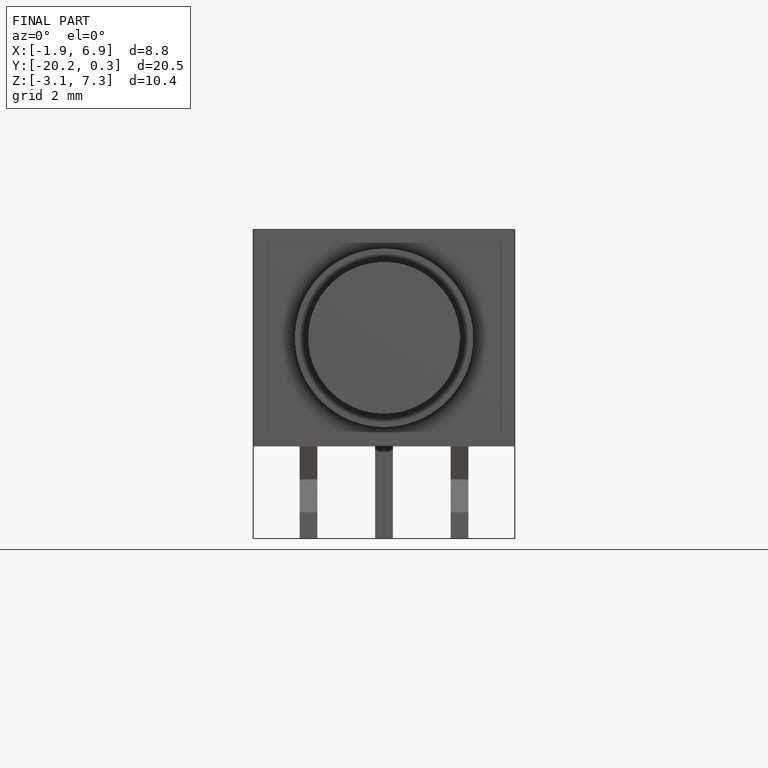
[diagram: finished part — front view with bounding-box wireframe]
